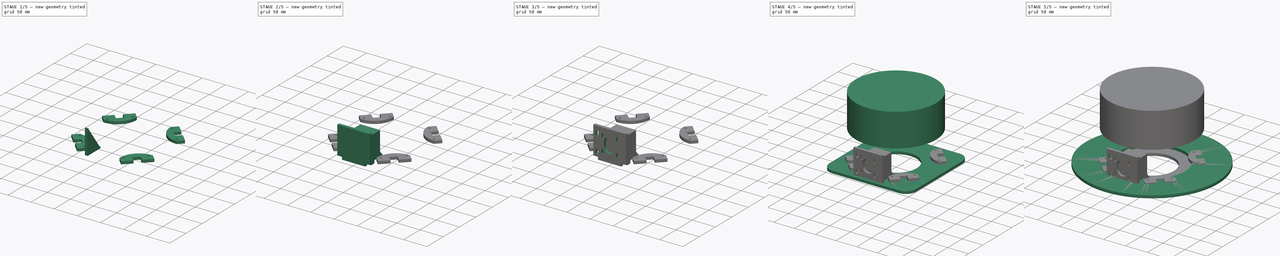
[diagram: build sequence overview — one tinted view per stage of 5, left to right]
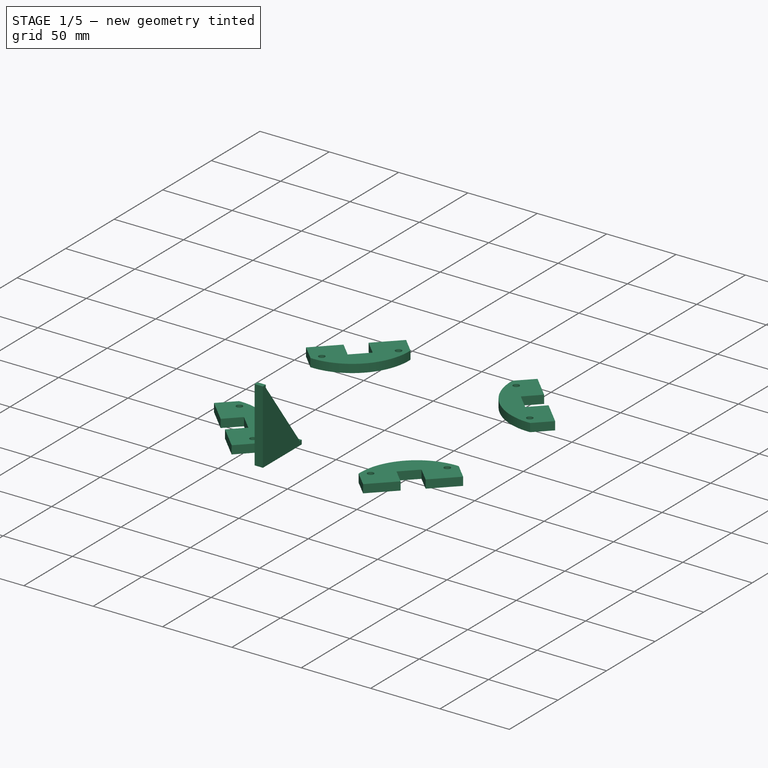
[diagram: stage 1 of 5 — iso view after this stage's code; geometry added in this stage tinted green]
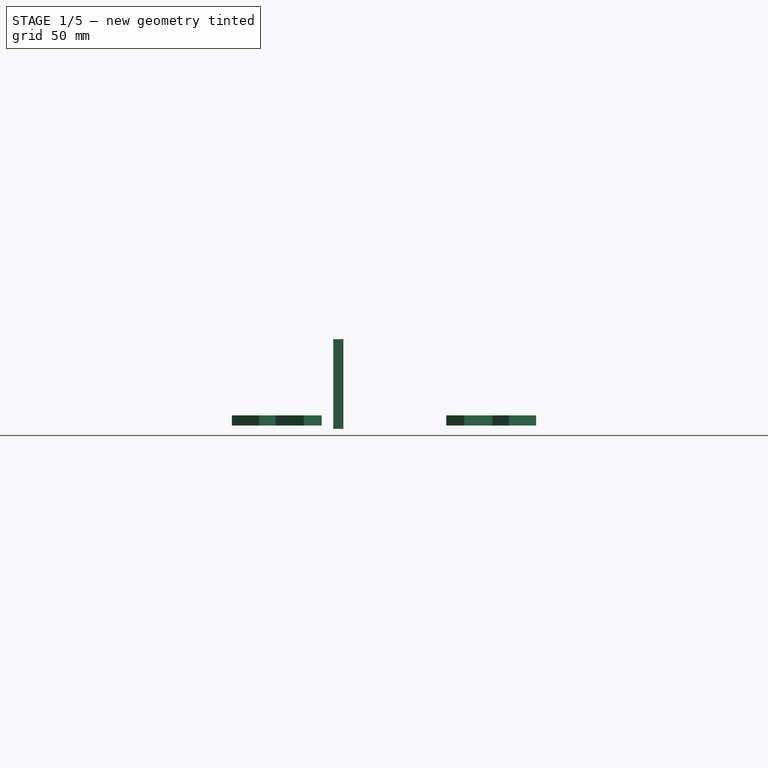
[diagram: stage 1 of 5 — front view after this stage's code; geometry added in this stage tinted green]
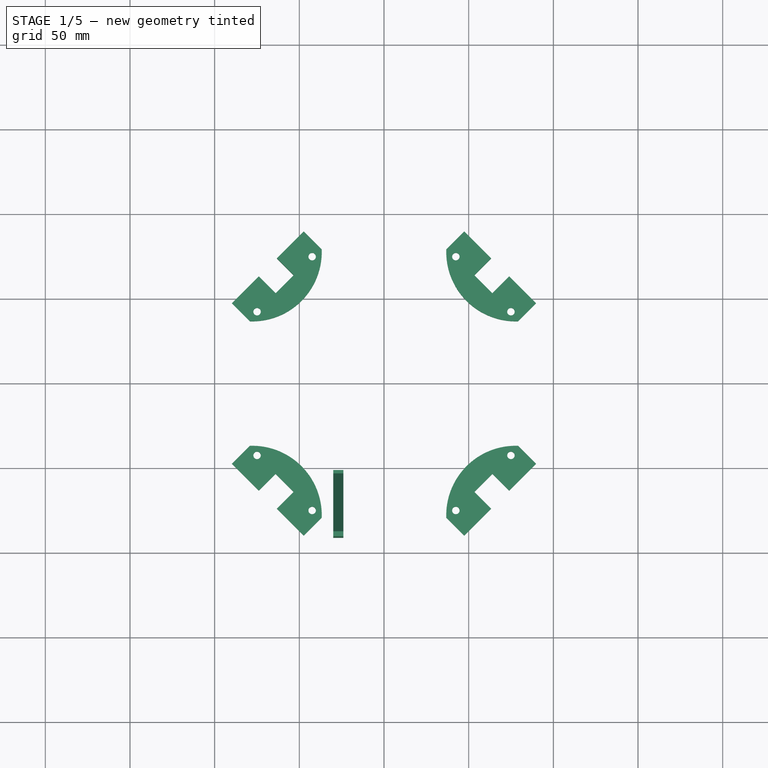
[diagram: stage 1 of 5 — top view after this stage's code; geometry added in this stage tinted green]
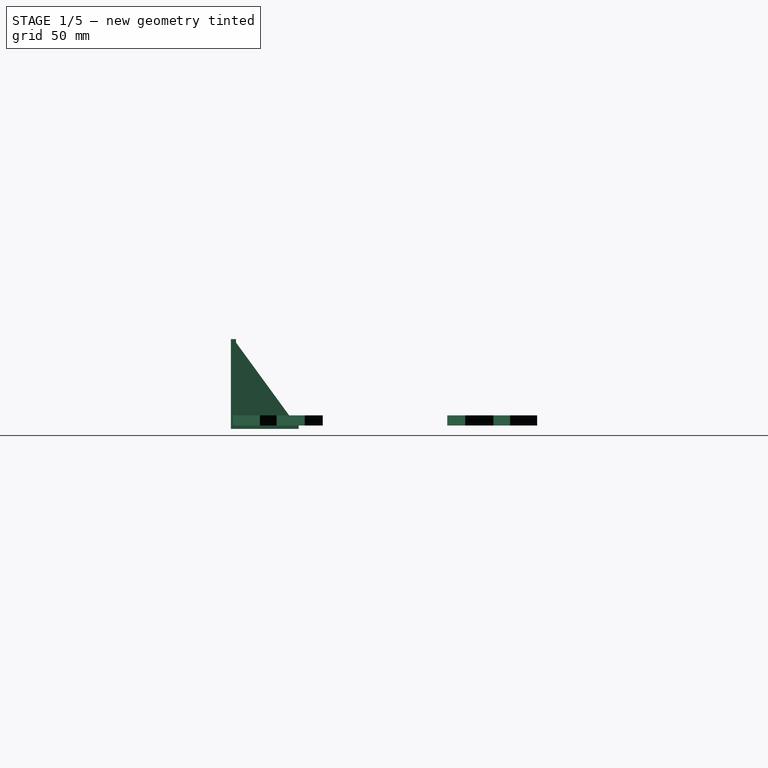
[diagram: stage 1 of 5 — right view after this stage's code; geometry added in this stage tinted green]
FCSTD DOCUMENT  (FreeCAD 0.16RUnknown)
Label: base
License: All rights reserved
LicenseURL: http://en.wikipedia.org/wiki/All_rights_reserved
objects: Sketcher::SketchObject×14, PartDesign::Pad×9, PartDesign::Pocket×5, Part::Feature×4, Part::FeaturePython×2, PartDesign::Fillet×1, PartDesign::Mirrored×1, Part::Mirroring×1
note: 51 computed .brp shape members not serialized (recipe doc carries the construction recipe); baked Part::Feature solids carry a one-line shape summary decoded from their .brp

FEATURE [Sketcher::SketchObject] Sketch009  label="bracket-s"
  Placement = pos=(-24,-91,0) rot=(0.57735,0.57735,0.57735;2.0944rad)
  sketch-geometry (7):
    g0: LineSegment StartX=0 StartY=53 StartZ=0 EndX=0 EndY=0 EndZ=0
    g1: LineSegment StartX=0 StartY=0 StartZ=0 EndX=40 EndY=0 EndZ=0
    g2: LineSegment StartX=40 StartY=0 StartZ=0 EndX=40 EndY=3 EndZ=0
    g3: LineSegment StartX=40 StartY=3 StartZ=0 EndX=38 EndY=3 EndZ=0
    g4: LineSegment StartX=38 StartY=3 StartZ=0 EndX=3 EndY=51 EndZ=0
    g5: LineSegment StartX=3 StartY=51 StartZ=0 EndX=3 EndY=53 EndZ=0
    g6: LineSegment StartX=3 StartY=53 StartZ=0 EndX=0 EndY=53 EndZ=0
  constraints (20):
    c: Coincident(g0,g-1)
    c: Vertical(g0)
    c: Coincident(g0,g1)
    c: Horizontal(g1)
    c: Coincident(g1,g2)
    c: Vertical(g2)
    c: Coincident(g2,g3)
    c: Horizontal(g3)
    c: Coincident(g3,g4)
    c: Coincident(g4,g5)
    c: Vertical(g5)
    c: Coincident(g5,g6)
    c: Coincident(g6,g0)
    c: Horizontal(g6)
    c: Equal(g2,g6)
    c: DistanceX(g6,g6) = 3
    c: DistanceY(g2,g0) = 50
    c: Equal(g3,g5)
    c: DistanceX(g3,g3) = 2
    c: DistanceX(g1,g1) = 40
FEATURE [PartDesign::Pad] Pad005
  Length = 6
  Length2 = 100
  Placement = pos=(-24,-91,0) rot=(0.57735,0.57735,0.57735;2.0944rad)
  Reversed = true
  Sketch = -> Sketch009
  Type = 0
FEATURE [Part::Feature] Pad007_cs
  Placement = pos=(150,0,0) rot=(0,1,0;1.5708rad)
  shape: bbox 59 x 46 x 2e-07 mm, 0 faces, 0 solids (baked)
FEATURE [Part::Feature] Pocket003_cs
  Placement = pos=(250,0,0) rot=(1,0,0;1.5708rad)
  shape: bbox 70 x 65.6 x 2e-07 mm, 0 faces, 0 solids (baked)
FEATURE [Part::Feature] Pocket001_cs
  shape: bbox 210 x 210 x 2e-07 mm, 0 faces, 0 solids (baked)
FEATURE [Sketcher::SketchObject] Sketch012  label="fastener-base"
  Placement = pos=(0,0,2) rot=(0,0,1;0rad)
  sketch-geometry (7):
    g0: LineSegment [constr] StartX=77.7817 StartY=77.7817 StartZ=0 EndX=0 EndY=0 EndZ=0
    g1: ArcOfCircle CenterX=77.7817 CenterY=77.7817 CenterZ=0 NormalX=0 NormalY=0 NormalZ=1 Radius=41.0366 StartAngle=3.10712 EndAngle=4.74686
    g2: LineSegment [constr] StartX=36.7696 StartY=79.196 StartZ=0 EndX=79.196 EndY=36.7696 EndZ=0
    g3: LineSegment StartX=36.7696 StartY=79.196 StartZ=0 EndX=47.3762 EndY=89.8026 EndZ=0
    g4: LineSegment StartX=47.3762 StartY=89.8026 StartZ=0 EndX=89.8026 EndY=47.3762 EndZ=0
    g5: LineSegment StartX=89.8026 StartY=47.3762 StartZ=0 EndX=79.196 EndY=36.7696 EndZ=0
    g6: GeomPoint [constr] X=68.5894 Y=68.5894 Z=0
  constraints (19):
    c: Coincident(g0,g-1)
    c: Distance(g0) = 110
    c: Angle(g-1,g0) = 0.785398
    c: Coincident(g1,g0)
    c: Coincident(g2,g1)
    c: Coincident(g2,g1)
    c: Coincident(g4,g3)
    c: Coincident(g5,g4)
    c: Coincident(g5,g1)
    c: Coincident(g3,g1)
    c: Perpendicular(g0,g2)
    c: Equal(g4,g2)
    c: Perpendicular(g2,g3)
    c: Equal(g5,g3)
    c: Distance(g3) = 15
    c: Distance(g4) = 60
    c: PointOnObject(g6,g4)
    c: PointOnObject(g6,g0)
    c: Distance(g6,g0) = 13
FEATURE [PartDesign::Pad] Pad008
  Length = 6
  Length2 = 100
  Placement = pos=(0,0,2) rot=(0,0,1;0rad)
  Sketch = -> Sketch012
  Type = 0
FEATURE [Sketcher::SketchObject] Sketch013  label="fastener-holes"
  ExternalGeometry = -> [Pad008]
  Placement = pos=(0,0,8) rot=(0,0,1;0rad)
  Support = -> Pad008 [Face6]
  sketch-geometry (8):
    g0: Circle CenterX=42.4264 CenterY=74.9533 CenterZ=0 NormalX=0 NormalY=0 NormalZ=1 Radius=2.2
    g1: Circle CenterX=74.9533 CenterY=42.4264 CenterZ=0 NormalX=0 NormalY=0 NormalZ=1 Radius=2.2
    g2: LineSegment [constr] StartX=42.4264 StartY=74.9533 StartZ=0 EndX=74.9533 EndY=42.4264 EndZ=0
    g3: LineSegment [constr] StartX=58.6899 StartY=58.6899 StartZ=0 EndX=68.5894 EndY=68.5894 EndZ=0
    g4: LineSegment StartX=63.2861 StartY=73.8927 StartZ=0 EndX=53.3866 EndY=63.9932 EndZ=0
    g5: LineSegment StartX=53.3866 StartY=63.9932 StartZ=0 EndX=63.9932 EndY=53.3866 EndZ=0
    g6: LineSegment StartX=63.9932 StartY=53.3866 StartZ=0 EndX=73.8927 EndY=63.2861 EndZ=0
    g7: LineSegment StartX=63.2861 StartY=73.8927 StartZ=0 EndX=73.8927 EndY=63.2861 EndZ=0
  constraints (23):
    c: Coincident(g2,g0)
    c: Coincident(g2,g1)
    c: Equal(g1,g0)
    c: Radius(g0) = 2.2
    c: Distance(g2) = 46
    c: Parallel(g2,g-3)
    c: PointOnObject(g3,g-3)
    c: Perpendicular(g2,g3)
    c: Symmetric(g2,g2,g3)
    c: Symmetric(g-3,g-3,g3)
    c: Distance(g3) = 14
    c: PointOnObject(g4,g-3)
    c: PointOnObject(g4,g2)
    c: Coincident(g5,g4)
    c: Coincident(g6,g5)
    c: PointOnObject(g6,g-3)
    c: PointOnObject(g5,g2)
    c: Parallel(g4,g6)
    c: Distance(g4,g5) = 15
    c: Perpendicular(g2,g4)
    c: Symmetric(g5,g4,g3)
    c: Coincident(g7,g4)
    c: Coincident(g7,g6)
FEATURE [PartDesign::Pocket] Pocket004
  Length = 5
  Placement = pos=(0,0,2) rot=(0,0,1;0rad)
  Sketch = -> Sketch013
  Type = 1
FEATURE [Part::FeaturePython] Array001  label="fasteners"  # Draft array (typed FeaturePython)
  Angle = 360
  ArrayType = 1
  Axis = (0,0,1)
  Base = -> Pocket004
  Center = (0,0,0)
  Fuse = false
  IntervalAxis = (0,0,0)
  IntervalX = (1,0,0)
  IntervalY = (0,1,0)
  IntervalZ = (0,0,0)
  NumberPolar = 4
  NumberX = 0
  NumberY = 0
  NumberZ = 0
FEATURE [Part::Feature] Pocket004_cs
  Placement = pos=(100,0,0) rot=(0,0,1;0rad)
  shape: bbox 53.06 x 53.06 x 2e-07 mm, 0 faces, 0 solids (baked)
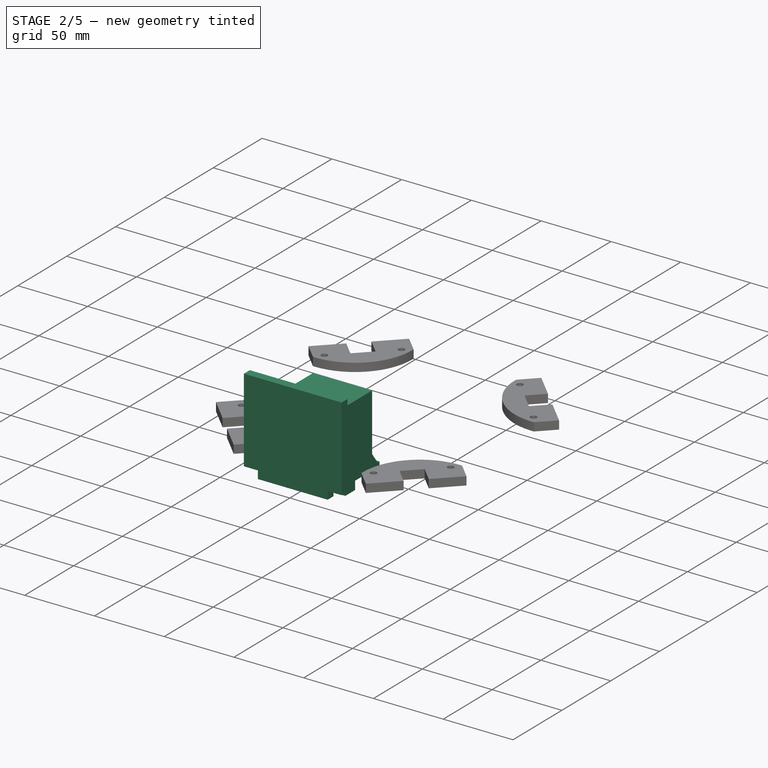
[diagram: stage 2 of 5 — iso view after this stage's code; geometry added in this stage tinted green]
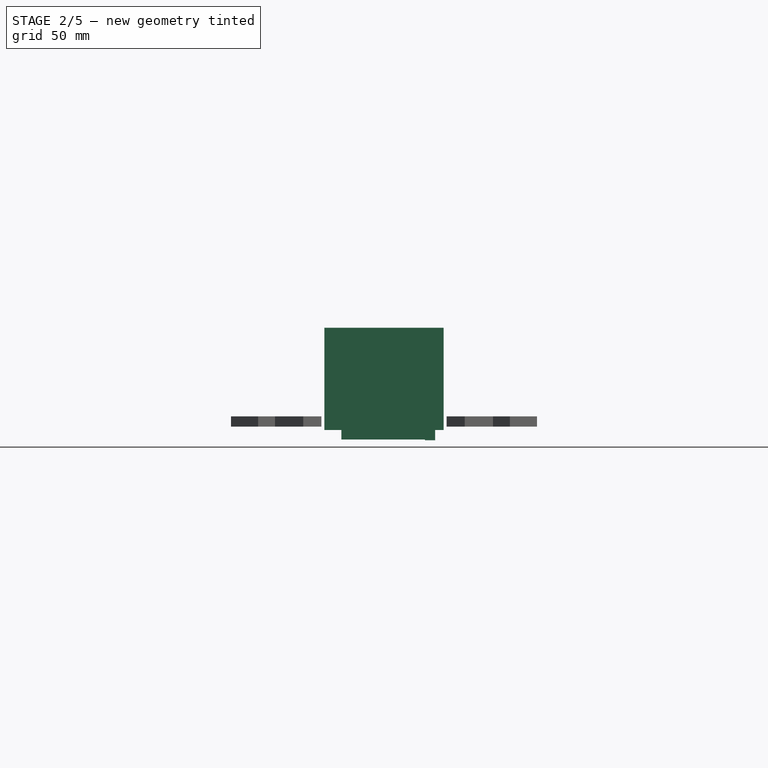
[diagram: stage 2 of 5 — front view after this stage's code; geometry added in this stage tinted green]
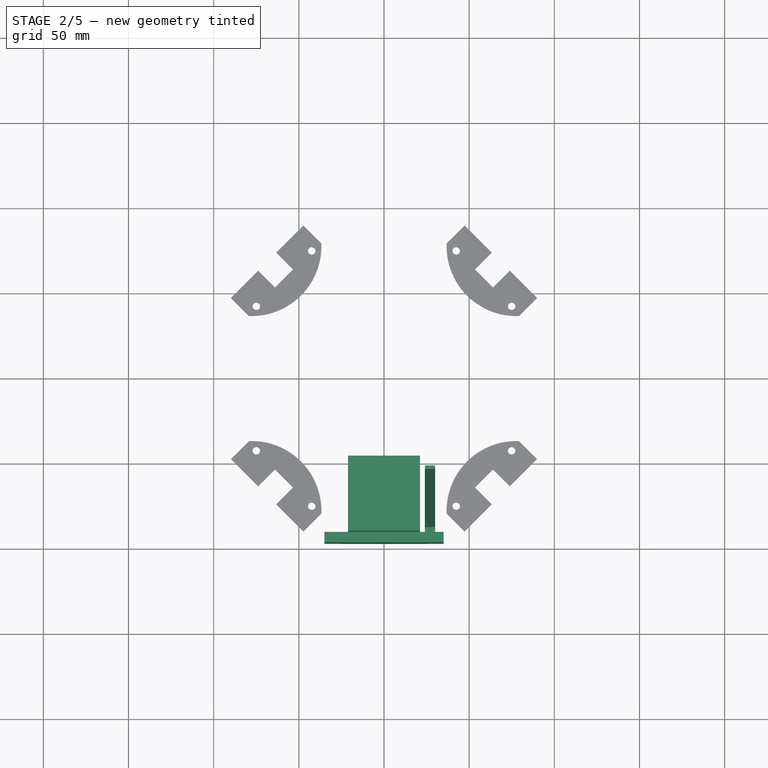
[diagram: stage 2 of 5 — top view after this stage's code; geometry added in this stage tinted green]
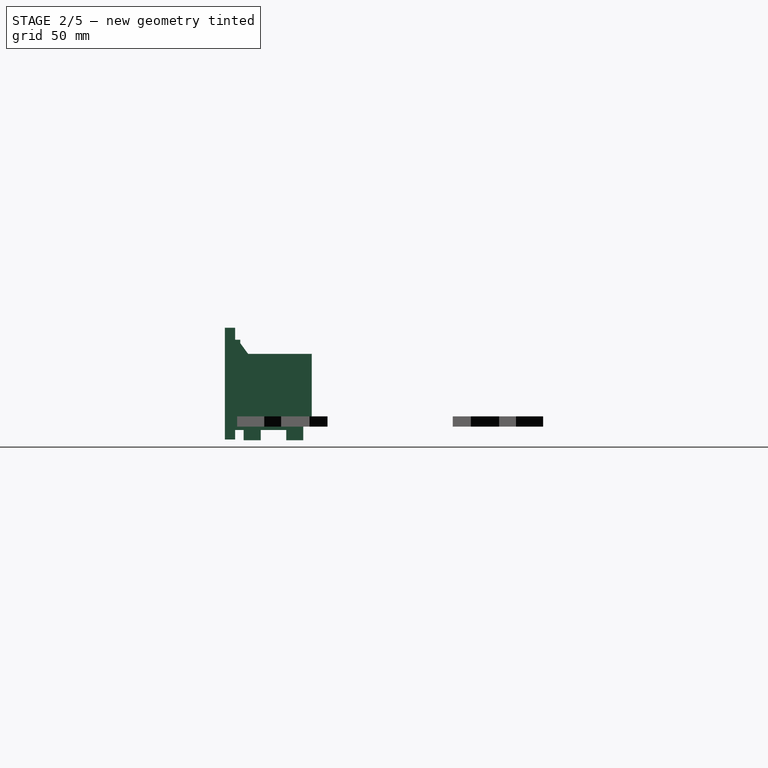
[diagram: stage 2 of 5 — right view after this stage's code; geometry added in this stage tinted green]
FEATURE [Sketcher::SketchObject] Sketch006  label="motorplate"
  Placement = pos=(0,-97,0) rot=(-1,0,0;4.71239rad)
  sketch-geometry (8):
    g0: LineSegment StartX=-35 StartY=60 StartZ=0 EndX=35 EndY=60 EndZ=0
    g1: LineSegment StartX=35 StartY=60 StartZ=0 EndX=35 EndY=0 EndZ=0
    g2: LineSegment StartX=-35 StartY=0 StartZ=0 EndX=-35 EndY=60 EndZ=0
    g3: LineSegment StartX=-35 StartY=0 StartZ=0 EndX=-25 EndY=0 EndZ=0
    g4: LineSegment StartX=35 StartY=0 StartZ=0 EndX=25 EndY=0 EndZ=0
    g5: LineSegment StartX=-25 StartY=0 StartZ=0 EndX=-25 EndY=-5.6 EndZ=0
    g6: LineSegment StartX=-25 StartY=-5.6 StartZ=0 EndX=25 EndY=-5.6 EndZ=0
    g7: LineSegment StartX=25 StartY=-5.6 StartZ=0 EndX=25 EndY=0 EndZ=0
  constraints (23):
    c: Coincident(g0,g1)
    c: Coincident(g2,g0)
    c: Horizontal(g0)
    c: Vertical(g1)
    c: Vertical(g2)
    c: Horizontal(g3)
    c: Coincident(g4,g1)
    c: Horizontal(g4)
    c: Symmetric(g2,g1,g-2)
    c: DistanceX(g0,g0) = 70
    c: Vertical(g5)
    c: Coincident(g5,g6)
    c: Horizontal(g6)
    c: Coincident(g6,g7)
    c: Vertical(g7)
    c: Coincident(g5,g3)
    c: Coincident(g4,g7)
    c: Coincident(g3,g2)
    c: Equal(g3,g4)
    c: DistanceX(g6,g6) = 50
    c: DistanceY(g5,g5) = 5.6
    c: DistanceY(g-1,g3) = 0
    c: DistanceY(g2,g2) = 60
FEATURE [PartDesign::Pad] Pad003
  Length = 6
  Length2 = 100
  Placement = pos=(0,-97,0) rot=(-1,0,0;4.71239rad)
  Reversed = true
  Sketch = -> Sketch006
  Type = 0
FEATURE [Sketcher::SketchObject] Sketch010  label="ref-nema17-44mm"
  Placement = pos=(0,-90,0) rot=(-1,0,0;4.71239rad)
  sketch-geometry (4):
    g0: LineSegment StartX=-21.15 StartY=44.6648 StartZ=0 EndX=21.15 EndY=44.6648 EndZ=0
    g1: LineSegment StartX=21.15 StartY=44.6648 StartZ=0 EndX=21.15 EndY=2.36482 EndZ=0
    g2: LineSegment StartX=21.15 StartY=2.36482 StartZ=0 EndX=-21.15 EndY=2.36482 EndZ=0
    g3: LineSegment StartX=-21.15 StartY=2.36482 StartZ=0 EndX=-21.15 EndY=44.6648 EndZ=0
  constraints (11):
    c: Coincident(g0,g1)
    c: Coincident(g1,g2)
    c: Coincident(g2,g3)
    c: Coincident(g3,g0)
    c: Horizontal(g0)
    c: Horizontal(g2)
    c: Vertical(g1)
    c: Vertical(g3)
    c: Equal(g2,g1)
    c: DistanceX(g2,g2) = 42.3
    c: Symmetric(g1,g2,g-2)
FEATURE [PartDesign::Pad] Pad006  label="nema17-44"
  Length = 44
  Length2 = 100
  Placement = pos=(0,-90,0) rot=(-1,0,0;4.71239rad)
  Reversed = true
  Sketch = -> Sketch010
  Type = 0
FEATURE [Sketcher::SketchObject] Sketch011  label="bracket-tabs"
  ExternalGeometry = -> [Pad005]
  Placement = pos=(-24,-91,0) rot=(0.57735,0.57735,0.57735;2.0944rad)
  Support = -> Pad005 [Face8]
  sketch-geometry (18):
    g0: LineSegment StartX=-6 StartY=50 StartZ=0 EndX=0 EndY=50 EndZ=0
    g1: LineSegment StartX=0 StartY=50 StartZ=0 EndX=0 EndY=40 EndZ=0
    g2: LineSegment StartX=0 StartY=40 StartZ=0 EndX=-6 EndY=40 EndZ=0
    g3: LineSegment StartX=-6 StartY=40 StartZ=0 EndX=-6 EndY=50 EndZ=0
    g4: LineSegment StartX=-6 StartY=15 StartZ=0 EndX=0 EndY=15 EndZ=0
    g5: LineSegment StartX=0 StartY=15 StartZ=0 EndX=0 EndY=5 EndZ=0
    g6: LineSegment StartX=0 StartY=5 StartZ=0 EndX=-6 EndY=5 EndZ=0
    g7: LineSegment StartX=-6 StartY=5 StartZ=0 EndX=-6 EndY=15 EndZ=0
    g8: LineSegment StartX=40 StartY=-6 StartZ=0 EndX=30 EndY=-6 EndZ=0
    g9: LineSegment StartX=30 StartY=-6 StartZ=0 EndX=30 EndY=0 EndZ=0
    g10: LineSegment StartX=30 StartY=0 StartZ=0 EndX=40 EndY=0 EndZ=0
    g11: LineSegment StartX=40 StartY=0 StartZ=0 EndX=40 EndY=-6 EndZ=0
    g12: LineSegment StartX=15 StartY=-6 StartZ=0 EndX=5 EndY=-6 EndZ=0
    g13: LineSegment StartX=5 StartY=-6 StartZ=0 EndX=5 EndY=0 EndZ=0
    g14: LineSegment StartX=5 StartY=0 StartZ=0 EndX=15 EndY=0 EndZ=0
    g15: LineSegment StartX=15 StartY=0 StartZ=0 EndX=15 EndY=-6 EndZ=0
    g16: LineSegment [constr] StartX=0 StartY=40 StartZ=0 EndX=0 EndY=15 EndZ=0
    g17: LineSegment [constr] StartX=15 StartY=0 StartZ=0 EndX=30 EndY=0 EndZ=0
  constraints (52):
    c: Coincident(g0,g1)
    c: Coincident(g1,g2)
    c: Coincident(g2,g3)
    c: Coincident(g3,g0)
    c: Horizontal(g0)
    c: Horizontal(g2)
    c: Vertical(g1)
    c: Vertical(g3)
    c: Coincident(g4,g5)
    c: Coincident(g5,g6)
    c: Coincident(g6,g7)
    c: Coincident(g7,g4)
    c: Horizontal(g4)
    c: Horizontal(g6)
    c: Vertical(g5)
    c: Vertical(g7)
    c: Coincident(g8,g9)
    c: Coincident(g9,g10)
    c: Coincident(g10,g11)
    c: Coincident(g11,g8)
    c: Horizontal(g8)
    c: Horizontal(g10)
    c: Vertical(g9)
    c: Vertical(g11)
    c: Coincident(g12,g13)
    c: Coincident(g13,g14)
    c: Coincident(g14,g15)
    c: Coincident(g15,g12)
    c: Horizontal(g12)
    c: Horizontal(g14)
    c: Vertical(g13)
    c: Vertical(g15)
    c: Coincident(g16,g1)
    c: Coincident(g16,g4)
    c: Vertical(g16)
    c: Coincident(g17,g14)
    c: Coincident(g17,g9)
    c: Horizontal(g17)
    c: Equal(g9,g15)
    c: Equal(g15,g4)
    c: Equal(g4,g2)
    c: DistanceY(g13,g13) = 6
    c: Equal(g8,g12)
    c: Equal(g12,g7)
    c: Equal(g7,g3)
    c: DistanceX(g12,g12) = 10
    c: PointOnObject(g14,g-4)
    c: PointOnObject(g4,g-3)
    c: DistanceY(g4,g1) = 25
    c: DistanceY(g-1,g5) = 5
    c: DistanceX(g14,g9) = 15
    c: DistanceX(g-1,g13) = 5
FEATURE [PartDesign::Pad] Pad007  label="bracket-side"
  Length = 6
  Length2 = 100
  Placement = pos=(-24,-91,0) rot=(0.57735,0.57735,0.57735;2.0944rad)
  Reversed = true
  Sketch = -> Sketch011
  Type = 0
FEATURE [Part::Mirroring] Part__Mirroring  label="bracket-side (Mirror #1)"
  Base = (0,0,0)
  Normal = (1,0,0)
  Source = -> Pad007
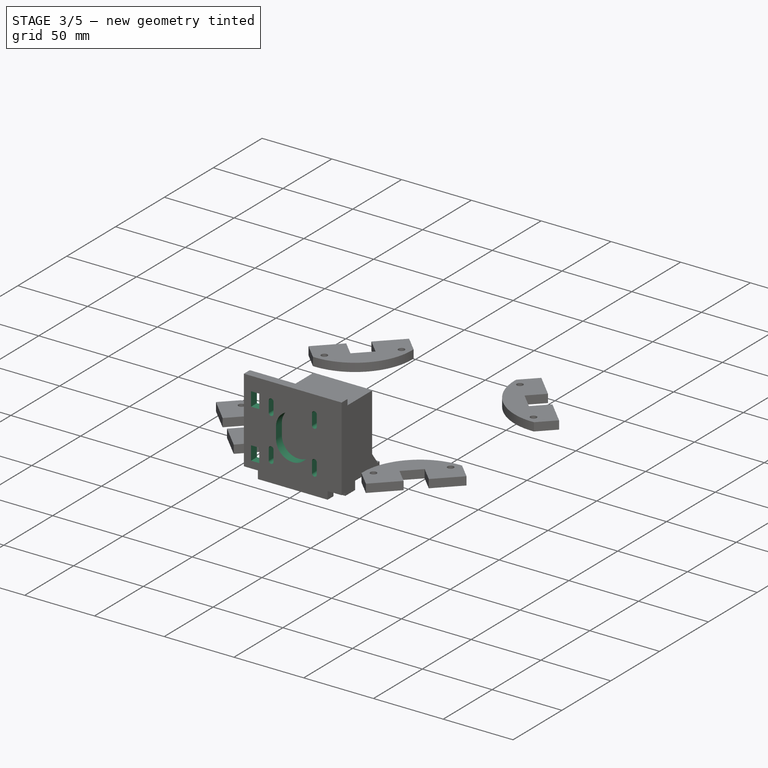
[diagram: stage 3 of 5 — iso view after this stage's code; geometry added in this stage tinted green]
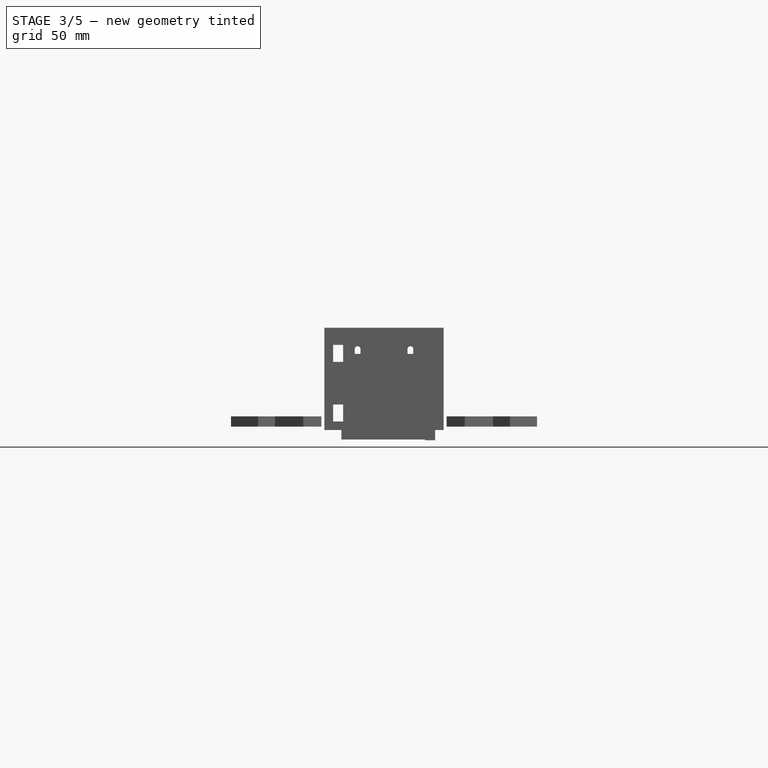
[diagram: stage 3 of 5 — front view after this stage's code; geometry added in this stage tinted green]
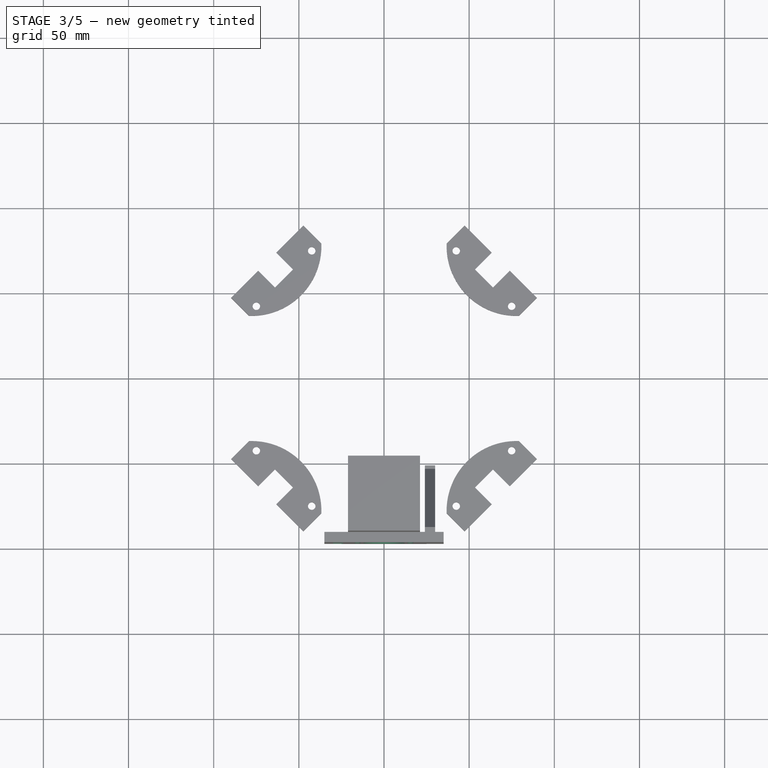
[diagram: stage 3 of 5 — top view after this stage's code; geometry added in this stage tinted green]
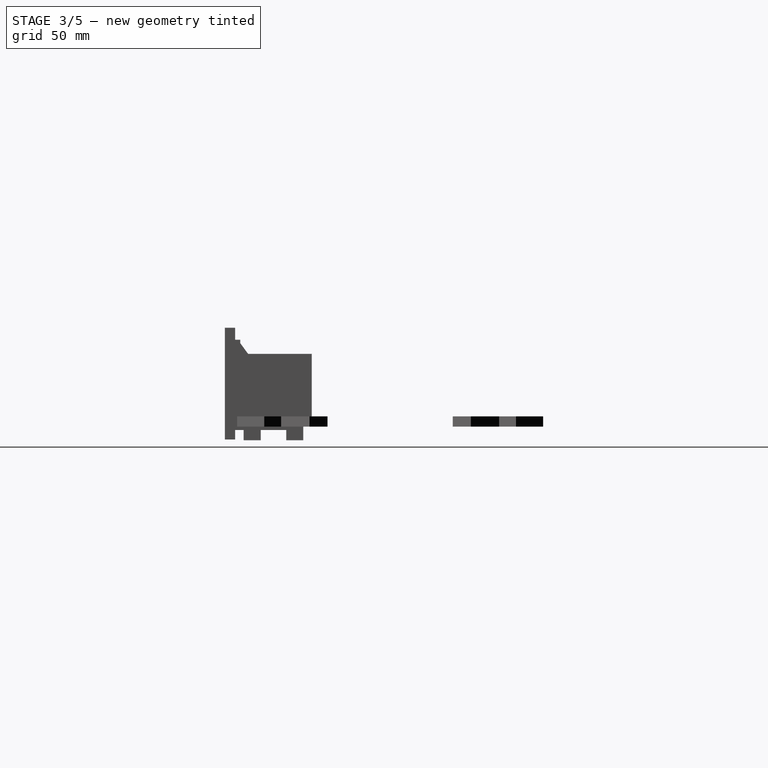
[diagram: stage 3 of 5 — right view after this stage's code; geometry added in this stage tinted green]
FEATURE [Sketcher::SketchObject] Sketch007  label="motorplate-bracketholes"
  ExternalGeometry = -> [Pad003]
  Placement = pos=(0,-97,0) rot=(1,0,0;1.5708rad)
  Support = -> Pad003 [Face9]
  sketch-geometry (9):
    g0: LineSegment StartX=-29.9 StartY=50 StartZ=0 EndX=-24 EndY=50 EndZ=0
    g1: LineSegment StartX=-24 StartY=50 StartZ=0 EndX=-24 EndY=40 EndZ=0
    g2: LineSegment StartX=-24 StartY=40 StartZ=0 EndX=-29.9 EndY=40 EndZ=0
    g3: LineSegment StartX=-29.9 StartY=40 StartZ=0 EndX=-29.9 EndY=50 EndZ=0
    g4: LineSegment StartX=-29.9 StartY=15 StartZ=0 EndX=-24 EndY=15 EndZ=0
    g5: LineSegment StartX=-24 StartY=15 StartZ=0 EndX=-24 EndY=5 EndZ=0
    g6: LineSegment StartX=-24 StartY=5 StartZ=0 EndX=-29.9 EndY=5 EndZ=0
    g7: LineSegment StartX=-29.9 StartY=5 StartZ=0 EndX=-29.9 EndY=15 EndZ=0
    g8: LineSegment [constr] StartX=-29.9 StartY=40 StartZ=0 EndX=-29.9 EndY=15 EndZ=0
  constraints (26):
    c: Coincident(g0,g1)
    c: Coincident(g1,g2)
    c: Coincident(g2,g3)
    c: Coincident(g3,g0)
    c: Horizontal(g0)
    c: Horizontal(g2)
    c: Vertical(g1)
    c: Vertical(g3)
    c: Coincident(g4,g5)
    c: Coincident(g5,g6)
    c: Coincident(g6,g7)
    c: Coincident(g7,g4)
    c: Horizontal(g4)
    c: Horizontal(g6)
    c: Vertical(g5)
    c: Vertical(g7)
    c: Coincident(g8,g2)
    c: Coincident(g8,g4)
    c: Vertical(g8)
    c: DistanceY(g8,g8) = 25
    c: Equal(g7,g3)
    c: DistanceY(g3,g3) = 10
    c: DistanceX(g0,g0) = 5.9
    c: Equal(g4,g2)
    c: DistanceY(g5,g-1) = -5
    c: DistanceX(g0,g-1) = 24
FEATURE [PartDesign::Pocket] Pocket002
  Length = 5
  Placement = pos=(0,-97,0) rot=(-1,0,0;4.71239rad)
  Sketch = -> Sketch007
  Type = 1
FEATURE [PartDesign::Mirrored] Mirrored
  MirrorPlane = -> Sketch007 [V_Axis]
  Originals = -> [Pocket002]
  Placement = pos=(0,-97,0) rot=(-1,0,0;4.71239rad)
FEATURE [Sketcher::SketchObject] Sketch008  label="nema17-holes"
  Placement = pos=(0,-97,0) rot=(1,0,0;1.5708rad)
  Support = -> Mirrored [Face4]
  sketch-geometry (27):
    g0: LineSegment [constr] StartX=15.5 StartY=39.5 StartZ=0 EndX=-15.5 EndY=39.5 EndZ=0
    g1: LineSegment [constr] StartX=-15.5 StartY=39.5 StartZ=0 EndX=-15.5 EndY=8.5 EndZ=0
    g2: LineSegment [constr] StartX=-15.5 StartY=8.5 StartZ=0 EndX=15.5 EndY=8.5 EndZ=0
    g3: LineSegment [constr] StartX=15.5 StartY=8.5 StartZ=0 EndX=15.5 EndY=39.5 EndZ=0
    g4: LineSegment [constr] StartX=-501622 StartY=501744 StartZ=0 EndX=-501619 EndY=501747 EndZ=0
    g5: LineSegment [constr] StartX=15.5 StartY=39.5 StartZ=0 EndX=-15.5 EndY=8.5 EndZ=0
    g6: LineSegment [constr] StartX=-15.5 StartY=39.5 StartZ=0 EndX=15.5 EndY=8.5 EndZ=0
    g7: ArcOfCircle CenterX=15.5 CenterY=39.5 CenterZ=0 NormalX=0 NormalY=0 NormalZ=1 Radius=1.7 StartAngle=3.14159 EndAngle=6.28319
    g8: ArcOfCircle CenterX=15.5 CenterY=47.5 CenterZ=0 NormalX=0 NormalY=0 NormalZ=1 Radius=1.7 StartAngle=0 EndAngle=3.14159
    g9: LineSegment StartX=17.2 StartY=39.5 StartZ=0 EndX=17.2 EndY=47.5 EndZ=0
    g10: LineSegment StartX=13.8 StartY=39.5 StartZ=0 EndX=13.8 EndY=47.5 EndZ=0
    g11: ArcOfCircle CenterX=-15.5 CenterY=47.5 CenterZ=0 NormalX=0 NormalY=0 NormalZ=1 Radius=1.7 StartAngle=0 EndAngle=3.14159
    g12: ArcOfCircle CenterX=-15.5 CenterY=39.5 CenterZ=0 NormalX=0 NormalY=0 NormalZ=1 Radius=1.7 StartAngle=3.14159 EndAngle=6.28319
    g13: LineSegment StartX=-17.2 StartY=47.5 StartZ=0 EndX=-17.2 EndY=39.5 EndZ=0
    g14: LineSegment StartX=-13.8 StartY=47.5 StartZ=0 EndX=-13.8 EndY=39.5 EndZ=0
    g15: ArcOfCircle CenterX=0 CenterY=24 CenterZ=0 NormalX=0 NormalY=0 NormalZ=1 Radius=12 StartAngle=3.14159 EndAngle=6.28319
    g16: ArcOfCircle CenterX=0 CenterY=32 CenterZ=0 NormalX=0 NormalY=0 NormalZ=1 Radius=12 StartAngle=0 EndAngle=3.14159
    g17: LineSegment StartX=12 StartY=24 StartZ=0 EndX=12 EndY=32 EndZ=0
    g18: LineSegment StartX=-12 StartY=24 StartZ=0 EndX=-12 EndY=32 EndZ=0
    g19: ArcOfCircle CenterX=15.5 CenterY=8.5 CenterZ=0 NormalX=0 NormalY=0 NormalZ=1 Radius=1.7 StartAngle=3.14159 EndAngle=6.28319
    g20: ArcOfCircle CenterX=15.5 CenterY=16.5 CenterZ=0 NormalX=0 NormalY=0 NormalZ=1 Radius=1.7 StartAngle=0 EndAngle=3.14159
    g21: LineSegment StartX=17.2 StartY=8.5 StartZ=0 EndX=17.2 EndY=16.5 EndZ=0
    g22: LineSegment StartX=13.8 StartY=8.5 StartZ=0 EndX=13.8 EndY=16.5 EndZ=0
    g23: ArcOfCircle CenterX=-15.5 CenterY=16.5 CenterZ=0 NormalX=0 NormalY=0 NormalZ=1 Radius=1.7 StartAngle=0 EndAngle=3.14159
    g24: ArcOfCircle CenterX=-15.5 CenterY=8.5 CenterZ=0 NormalX=0 NormalY=0 NormalZ=1 Radius=1.7 StartAngle=3.14159 EndAngle=6.28319
    g25: LineSegment StartX=-17.2 StartY=16.5 StartZ=0 EndX=-17.2 EndY=8.5 EndZ=0
    g26: LineSegment StartX=-13.8 StartY=16.5 StartZ=0 EndX=-13.8 EndY=8.5 EndZ=0
  constraints (64):
    c: Coincident(g3,g0)
    c: Horizontal(g0)
    c: Horizontal(g2)
    c: Vertical(g1)
    c: Vertical(g3)
    c: DistanceX(g2) = 31
    c: Distance(g4) = 4
    c: Coincident(g1,g0)
    c: Coincident(g3,g2)
    c: Coincident(g1,g2)
    c: Coincident(g5,g0)
    c: Coincident(g5,g1)
    c: Coincident(g6,g0)
    c: Coincident(g6,g2)
    c: Tangent(g7,g10) = 1.5708
    c: Tangent(g7,g9) = -1.5708
    c: Tangent(g9,g8) = -1.5708
    c: Tangent(g10,g8) = 1.5708
    c: Equal(g7,g8)
    c: Equal(g1,g2)
    c: Tangent(g11,g14) = 1.5708
    c: Tangent(g11,g13) = -1.5708
    c: Tangent(g13,g12) = -1.5708
    c: Tangent(g14,g12) = 1.5708
    c: Equal(g11,g12)
    c: PointOnObject(g12,g0)
    c: Tangent(g15,g18) = 1.5708
    c: Tangent(g15,g17) = -1.5708
    c: Tangent(g17,g16) = -1.5708
    c: Tangent(g18,g16) = 1.5708
    c: Equal(g15,g16)
    c: Radius(g16) = 12
    c: Coincident(g12,g0)
    c: Coincident(g7,g0)
    c: Tangent(g19,g22) = 1.5708
    c: Tangent(g19,g21) = -1.5708
    c: Tangent(g21,g20) = -1.5708
    c: Tangent(g22,g20) = 1.5708
    c: Equal(g19,g20)
    c: Coincident(g19,g2)
    c: Tangent(g23,g26) = 1.5708
    c: Tangent(g23,g25) = -1.5708
    c: Tangent(g25,g24) = -1.5708
    c: Tangent(g26,g24) = 1.5708
    c: Equal(g23,g24)
    c: Coincident(g24,g1)
    c: Equal(g26,g21)
    c: Equal(g21,g14)
    c: Equal(g14,g9)
    c: Equal(g9,g18)
    c: Radius(g12) = 1.7
    c: Equal(g12,g7)
    c: Equal(g12,g19)
    c: Equal(g12,g24)
    c: Vertical(g10)
    c: Vertical(g13)
    c: Vertical(g17)
    c: Vertical(g22)
    c: Vertical(g25)
    c: PointOnObject(g15,g5)
    c: PointOnObject(g15,g6)
    c: DistanceY(g18,g18) = 8
    c: PointOnObject(g15,g-2)
    c: DistanceY(g-1,g16) = 32
FEATURE [PartDesign::Pocket] Pocket003
  Length = 5
  Placement = pos=(0,-97,0) rot=(-1,0,0;4.71239rad)
  Sketch = -> Sketch008
  Type = 1
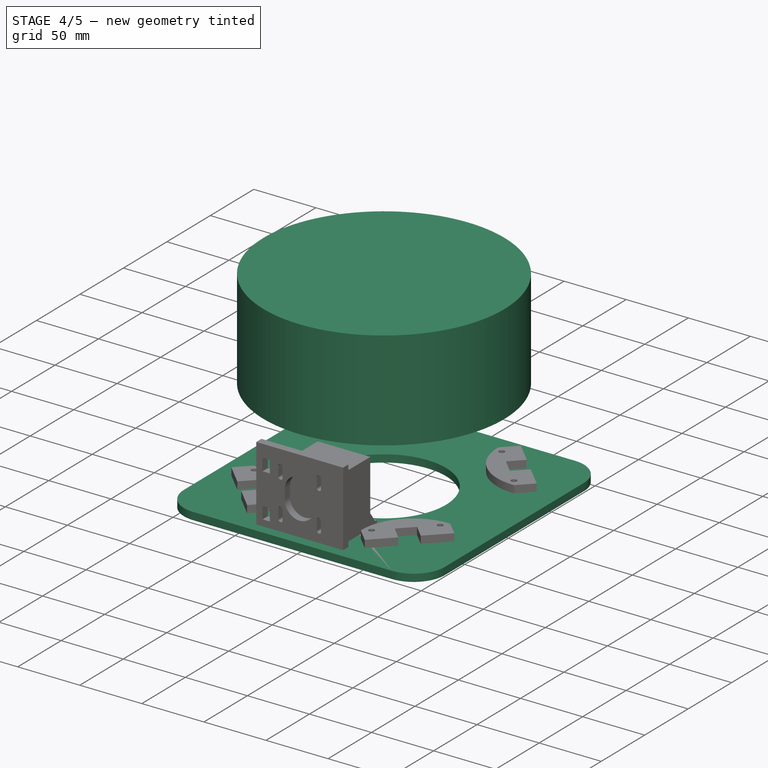
[diagram: stage 4 of 5 — iso view after this stage's code; geometry added in this stage tinted green]
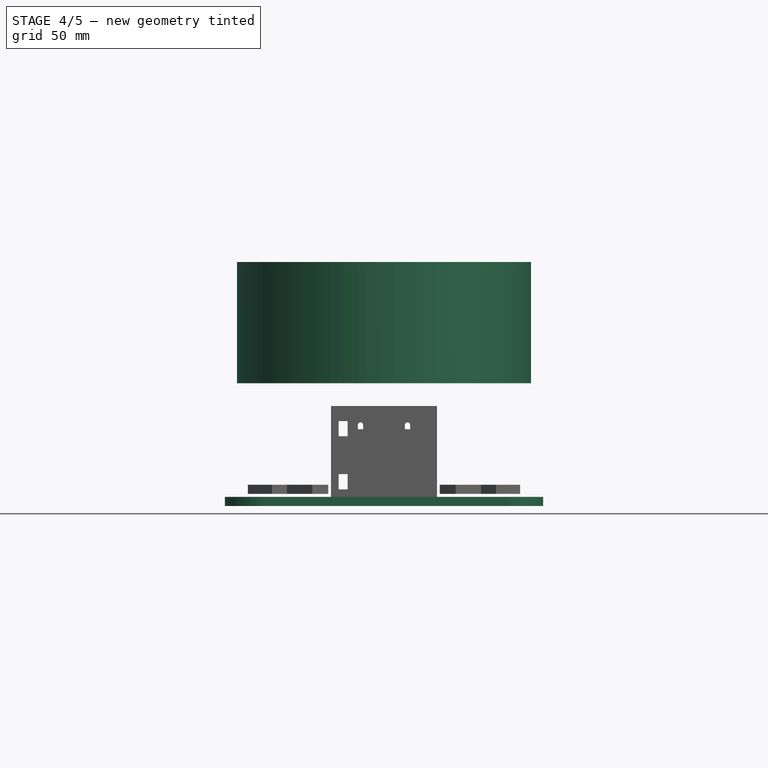
[diagram: stage 4 of 5 — front view after this stage's code; geometry added in this stage tinted green]
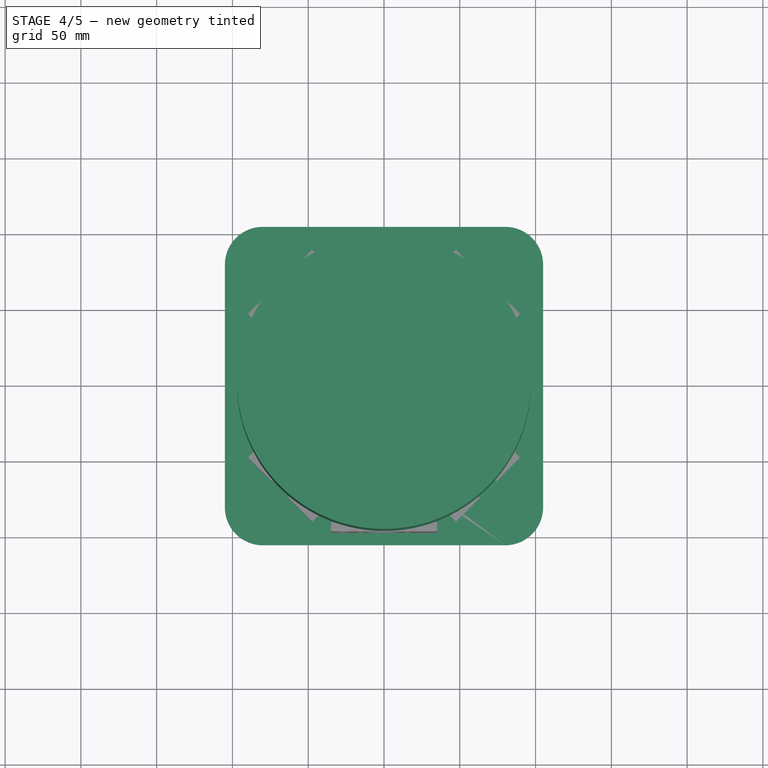
[diagram: stage 4 of 5 — top view after this stage's code; geometry added in this stage tinted green]
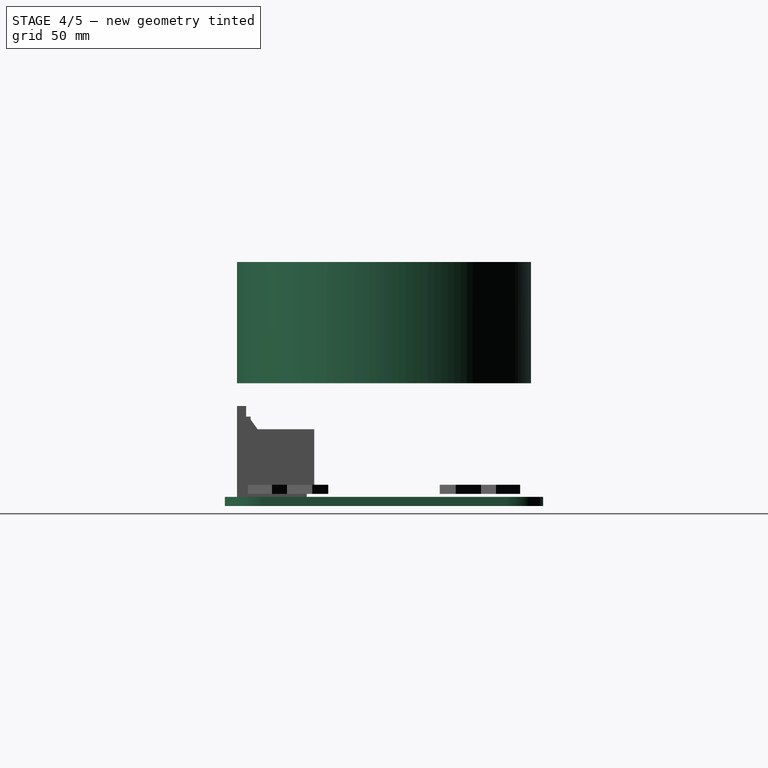
[diagram: stage 4 of 5 — right view after this stage's code; geometry added in this stage tinted green]
FEATURE [Sketcher::SketchObject] Sketch002  label="square"
  sketch-geometry (4):
    g0: LineSegment StartX=-105 StartY=105 StartZ=0 EndX=105 EndY=105 EndZ=0
    g1: LineSegment StartX=105 StartY=105 StartZ=0 EndX=105 EndY=-105 EndZ=0
    g2: LineSegment StartX=105 StartY=-105 StartZ=0 EndX=-105 EndY=-105 EndZ=0
    g3: LineSegment StartX=-105 StartY=-105 StartZ=0 EndX=-105 EndY=105 EndZ=0
  constraints (12):
    c: Coincident(g0,g1)
    c: Coincident(g1,g2)
    c: Coincident(g2,g3)
    c: Coincident(g3,g0)
    c: Horizontal(g0)
    c: Horizontal(g2)
    c: Vertical(g1)
    c: Vertical(g3)
    c: Symmetric(g0,g1,g-1)
    c: Symmetric(g0,g0,g-2)
    c: DistanceX(g0,g0) = 210
    c: DistanceY(g1,g1) = 210
FEATURE [PartDesign::Pad] Pad002
  Length = 6
  Length2 = 100
  Reversed = true
  Sketch = -> Sketch002
  Type = 0
FEATURE [PartDesign::Fillet] Fillet
  Base = -> Pad002 [Edge1,Edge2,Edge8,Edge5]
  Radius = 25
FEATURE [Sketcher::SketchObject] Sketch003  label="hole"
  Support = -> Fillet [Face2]
  sketch-geometry (1):
    g0: Circle CenterX=0 CenterY=0 CenterZ=0 NormalX=0 NormalY=0 NormalZ=1 Radius=50
  constraints (2):
    c: Coincident(g0,g-1)
    c: Radius(g0) = 50
FEATURE [PartDesign::Pocket] Pocket  label="base"
  Length = 5
  Sketch = -> Sketch003
  Type = 1
FEATURE [PartDesign::Pad] Pad004  label="ref-body"
  Length = 80
  Length2 = 100
  Placement = pos=(0,0,75) rot=(0,0,1;0rad)
  Sketch = -> Sketch005
  Type = 0
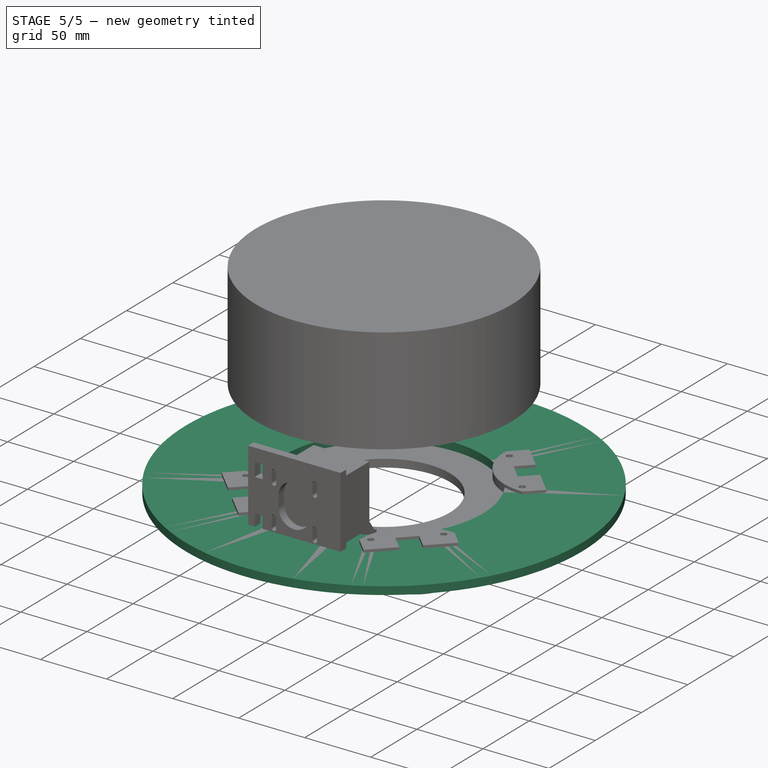
[diagram: stage 5 of 5 — iso view after this stage's code; geometry added in this stage tinted green]
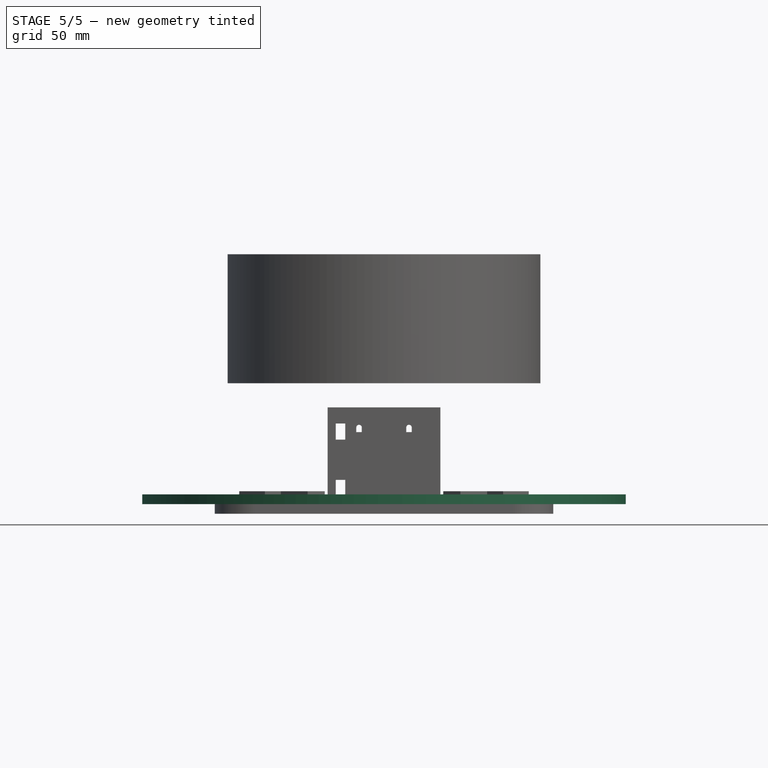
[diagram: stage 5 of 5 — front view after this stage's code; geometry added in this stage tinted green]
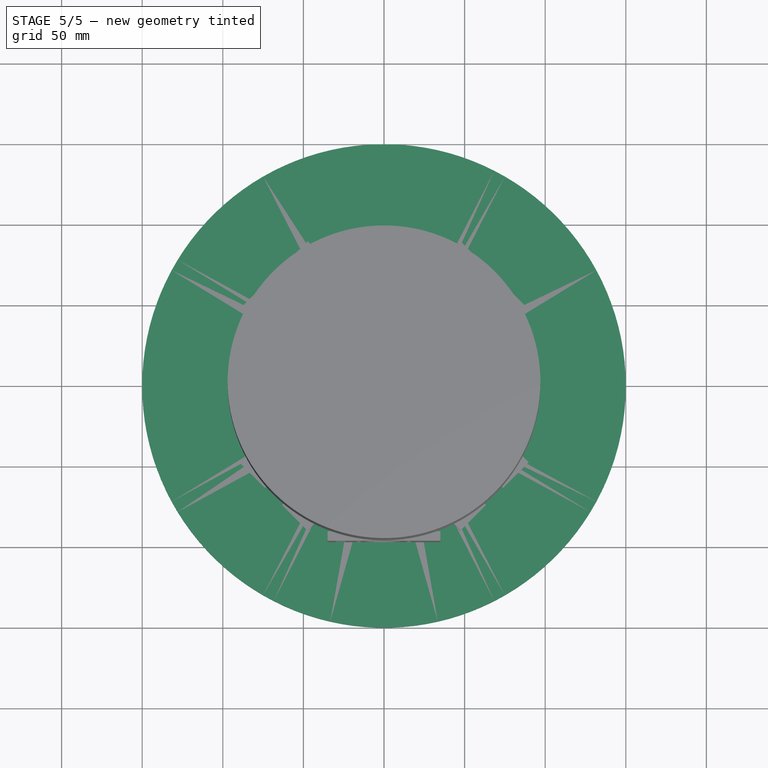
[diagram: stage 5 of 5 — top view after this stage's code; geometry added in this stage tinted green]
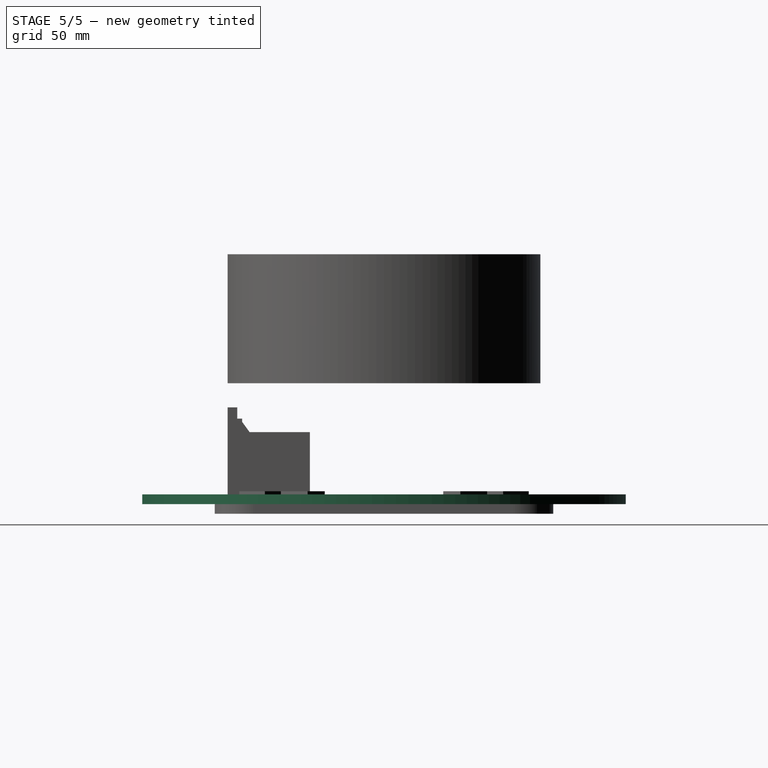
[diagram: stage 5 of 5 — right view after this stage's code; geometry added in this stage tinted green]
FEATURE [Sketcher::SketchObject] Sketch  label="circular"
  sketch-geometry (3):
    g0: Circle CenterX=0 CenterY=0 CenterZ=0 NormalX=0 NormalY=0 NormalZ=1 Radius=75
    g1: Circle CenterX=0 CenterY=0 CenterZ=0 NormalX=0 NormalY=0 NormalZ=1 Radius=150
    g2: LineSegment [constr] StartX=75 StartY=0 StartZ=0 EndX=150 EndY=0 EndZ=0
  constraints (8):
    c: Coincident(g0,g-1)
    c: Coincident(g1,g-1)
    c: PointOnObject(g2,g0)
    c: PointOnObject(g2,g1)
    c: Horizontal(g2)
    c: PointOnObject(g2,g-1)
    c: DistanceX(g-1,g2) = 75
    c: DistanceX(g2) = 150
FEATURE [PartDesign::Pad] Pad
  Length = 6
  Length2 = 100
  Sketch = -> Sketch
  Type = 0
FEATURE [Sketcher::SketchObject] Sketch001  label="ref-foot"
  sketch-geometry (2):
    g0: Circle CenterX=77.7817 CenterY=77.7817 CenterZ=0 NormalX=0 NormalY=0 NormalZ=1 Radius=27.5
    g1: LineSegment [constr] StartX=77.7817 StartY=77.7817 StartZ=0 EndX=0 EndY=0 EndZ=0
  constraints (5):
    c: Radius(g0) = 27.5
    c: Coincident(g1,g0)
    c: Coincident(g1,g-1)
    c: Distance(g1) = 110
    c: Angle(g-1,g1) = 0.785398
FEATURE [PartDesign::Pad] Pad001
  Length = 2
  Length2 = 100
  Sketch = -> Sketch001
  Type = 0
FEATURE [Part::FeaturePython] Array  label="ref-feet"  # Draft array (typed FeaturePython)
  Angle = 360
  ArrayType = 1
  Axis = (0,0,1)
  Base = -> Pad001
  Center = (0,0,0)
  Fuse = false
  IntervalAxis = (0,0,0)
  IntervalX = (1,0,0)
  IntervalY = (0,1,0)
  IntervalZ = (0,0,0)
  NumberPolar = 4
  NumberX = 0
  NumberY = 0
  NumberZ = 0
FEATURE [Sketcher::SketchObject] Sketch004  label="base-motorplatehole"
  Support = -> Pocket [Face2]
  sketch-geometry (24):
    g0: LineSegment StartX=-25 StartY=-91.2 StartZ=0 EndX=25 EndY=-91.2 EndZ=0
    g1: LineSegment StartX=25 StartY=-91.2 StartZ=0 EndX=25 EndY=-97 EndZ=0
    g2: LineSegment StartX=25 StartY=-97 StartZ=0 EndX=-25 EndY=-97 EndZ=0
    g3: LineSegment StartX=-25 StartY=-97 StartZ=0 EndX=-25 EndY=-91.2 EndZ=0
    g4: LineSegment [constr] StartX=-24 StartY=-61.2 StartZ=0 EndX=24 EndY=-61.2 EndZ=0
    g5: LineSegment [constr] StartX=24 StartY=-61.2 StartZ=0 EndX=24 EndY=-76.2 EndZ=0
    g6: LineSegment [constr] StartX=24 StartY=-76.2 StartZ=0 EndX=-24 EndY=-76.2 EndZ=0
    g7: LineSegment [constr] StartX=-24 StartY=-76.2 StartZ=0 EndX=-24 EndY=-61.2 EndZ=0
    g8: LineSegment StartX=-29.6 StartY=-51.2 StartZ=0 EndX=-24 EndY=-51.2 EndZ=0
    g9: LineSegment StartX=-24 StartY=-51.2 StartZ=0 EndX=-24 EndY=-61.2 EndZ=0
    g10: LineSegment StartX=-24 StartY=-61.2 StartZ=0 EndX=-29.6 EndY=-61.2 EndZ=0
    g11: LineSegment StartX=-29.6 StartY=-61.2 StartZ=0 EndX=-29.6 EndY=-51.2 EndZ=0
    g12: LineSegment StartX=-29.6 StartY=-86.2 StartZ=0 EndX=-24 EndY=-86.2 EndZ=0
    g13: LineSegment StartX=-24 StartY=-86.2 StartZ=0 EndX=-24 EndY=-76.2 EndZ=0
    g14: LineSegment StartX=-24 StartY=-76.2 StartZ=0 EndX=-29.6 EndY=-76.2 EndZ=0
    g15: LineSegment StartX=-29.6 StartY=-76.2 StartZ=0 EndX=-29.6 EndY=-86.2 EndZ=0
    g16: LineSegment StartX=24 StartY=-61.2 StartZ=0 EndX=29.6 EndY=-61.2 EndZ=0
    g17: LineSegment StartX=29.6 StartY=-61.2 StartZ=0 EndX=29.6 EndY=-51.2 EndZ=0
    g18: LineSegment StartX=29.6 StartY=-51.2 StartZ=0 EndX=24 EndY=-51.2 EndZ=0
    g19: LineSegment StartX=24 StartY=-51.2 StartZ=0 EndX=24 EndY=-61.2 EndZ=0
    g20: LineSegment StartX=24 StartY=-76.2 StartZ=0 EndX=29.6 EndY=-76.2 EndZ=0
    g21: LineSegment StartX=29.6 StartY=-76.2 StartZ=0 EndX=29.6 EndY=-86.2 EndZ=0
    g22: LineSegment StartX=29.6 StartY=-86.2 StartZ=0 EndX=24 EndY=-86.2 EndZ=0
    g23: LineSegment StartX=24 StartY=-86.2 StartZ=0 EndX=24 EndY=-76.2 EndZ=0
  constraints (68):
    c: Coincident(g0,g1)
    c: Coincident(g1,g2)
    c: Coincident(g2,g3)
    c: Coincident(g3,g0)
    c: Horizontal(g0)
    c: Horizontal(g2)
    c: Vertical(g1)
    c: Vertical(g3)
    c: DistanceX(g2,g2) = 50
    c: Symmetric(g0,g0,g-2)
    c: DistanceY(g3,g3) = 5.8
    c: DistanceY(g2,g-1) = 97
    c: Coincident(g4,g5)
    c: Coincident(g5,g6)
    c: Coincident(g6,g7)
    c: Coincident(g7,g4)
    c: Horizontal(g4)
    c: Horizontal(g6)
    c: Vertical(g5)
    c: Vertical(g7)
    c: DistanceY(g7,g7) = 15
    c: Coincident(g8,g9)
    c: Coincident(g9,g10)
    c: Coincident(g10,g11)
    c: Coincident(g11,g8)
    c: Horizontal(g8)
    c: Horizontal(g10)
    c: Vertical(g9)
    c: Vertical(g11)
    c: Coincident(g9,g4)
    c: Coincident(g12,g13)
    c: Coincident(g13,g14)
    c: Coincident(g14,g15)
    c: Coincident(g15,g12)
    c: Horizontal(g12)
    c: Horizontal(g14)
    c: Vertical(g13)
    c: Vertical(g15)
    c: Coincident(g13,g6)
    c: Coincident(g16,g17)
    c: Coincident(g17,g18)
    c: Coincident(g18,g19)
    c: Coincident(g19,g16)
    c: Horizontal(g16)
    c: Horizontal(g18)
    c: Vertical(g17)
    c: Vertical(g19)
    c: Coincident(g16,g4)
    c: Coincident(g20,g21)
    c: Coincident(g21,g22)
    c: Coincident(g22,g23)
    c: Coincident(g23,g20)
    c: Horizontal(g20)
    c: Horizontal(g22)
    c: Vertical(g21)
    c: Vertical(g23)
    c: Coincident(g20,g5)
    c: Equal(g16,g20)
    c: Equal(g20,g14)
    c: Equal(g14,g10)
    c: DistanceX(g18,g18) = 5.6
    c: Symmetric(g4,g4,g-2)
    c: Equal(g9,g13)
    c: Equal(g13,g23)
    c: Equal(g23,g19)
    c: DistanceX(g4,g4) = 48
    c: DistanceY(g0,g12) = 5
    c: DistanceY(g11,g11) = 10
FEATURE [Sketcher::SketchObject] Sketch005  label="ref-body-s"
  Placement = pos=(0,0,75) rot=(0,0,1;0rad)
  sketch-geometry (1):
    g0: Circle CenterX=0 CenterY=0 CenterZ=0 NormalX=0 NormalY=0 NormalZ=1 Radius=97
  constraints (2):
    c: Coincident(g0,g-1)
    c: Radius(g0) = 97
FEATURE [PartDesign::Pocket] Pocket001
  Length = 5
  Sketch = -> Sketch004
  Type = 1
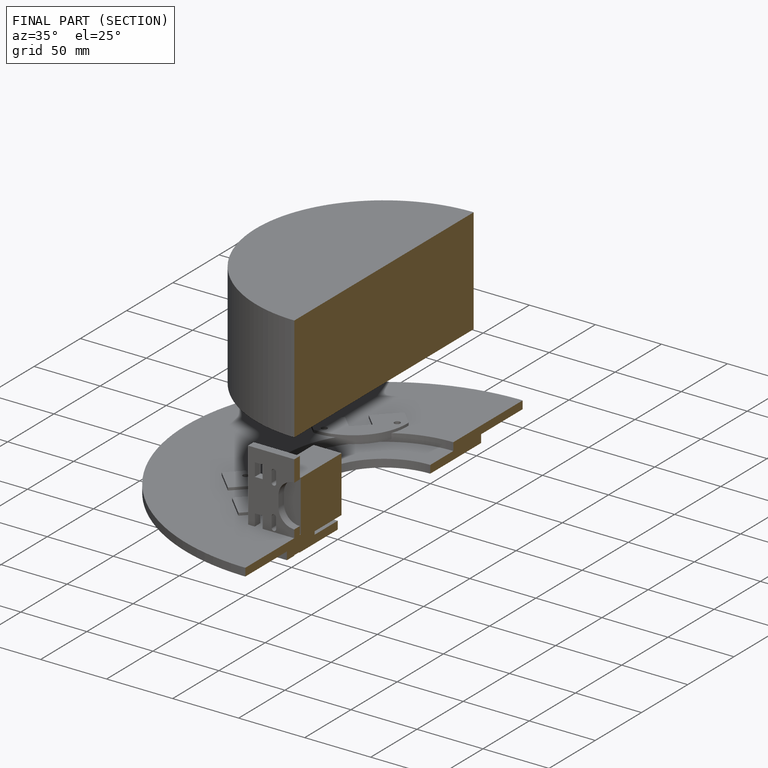
[diagram: finished part — half-section view (interior)]
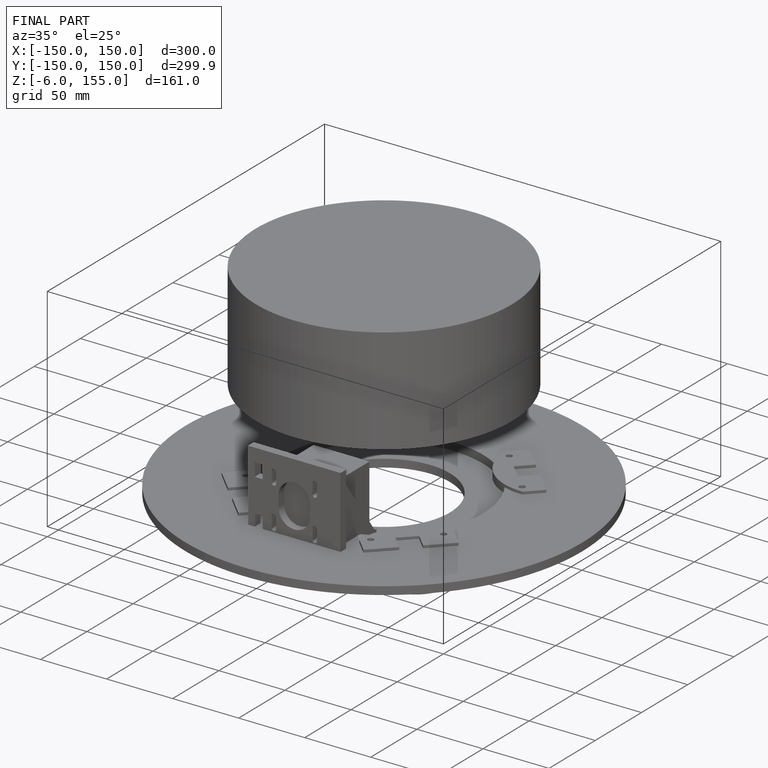
[diagram: finished part — iso view with bounding-box wireframe]
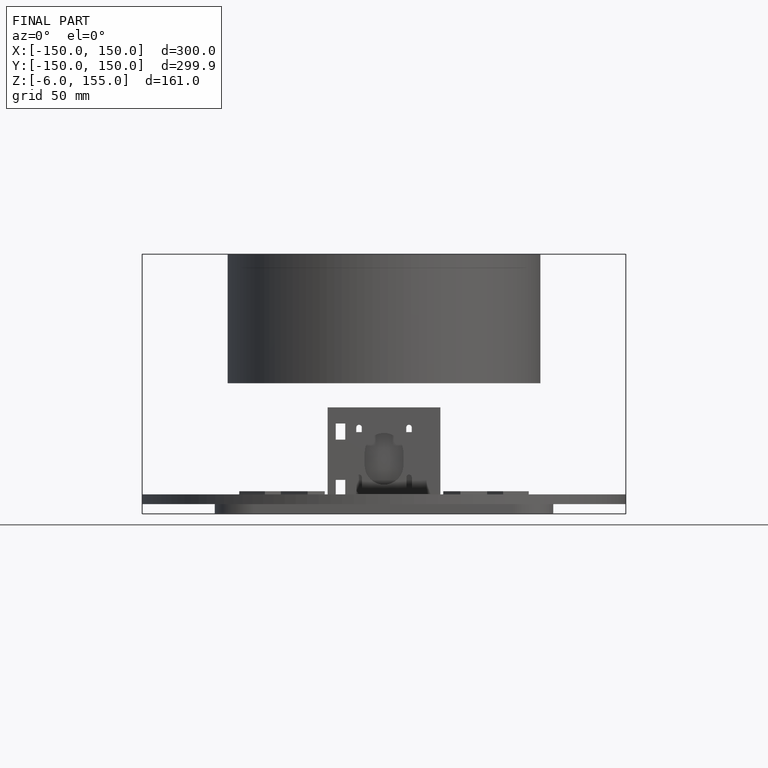
[diagram: finished part — front view with bounding-box wireframe]
